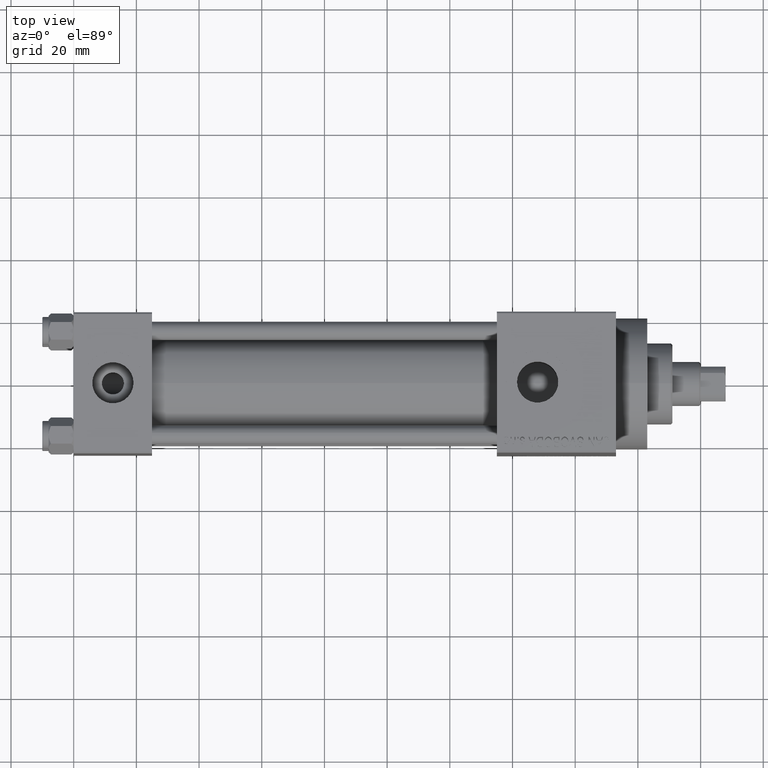
[diagram: clean part render]
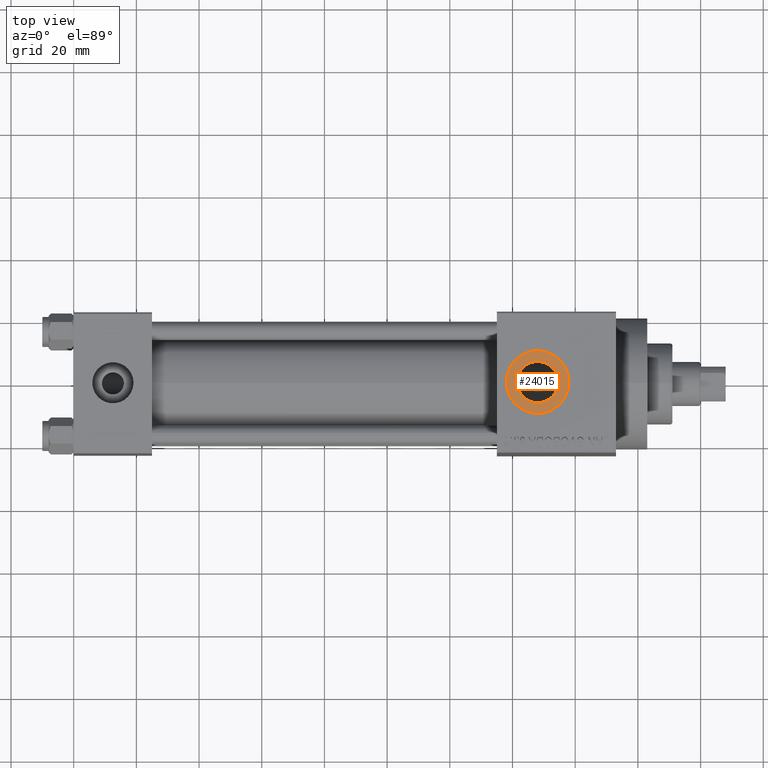
[diagram: same view with one face highlighted and labeled with its STEP entity id]
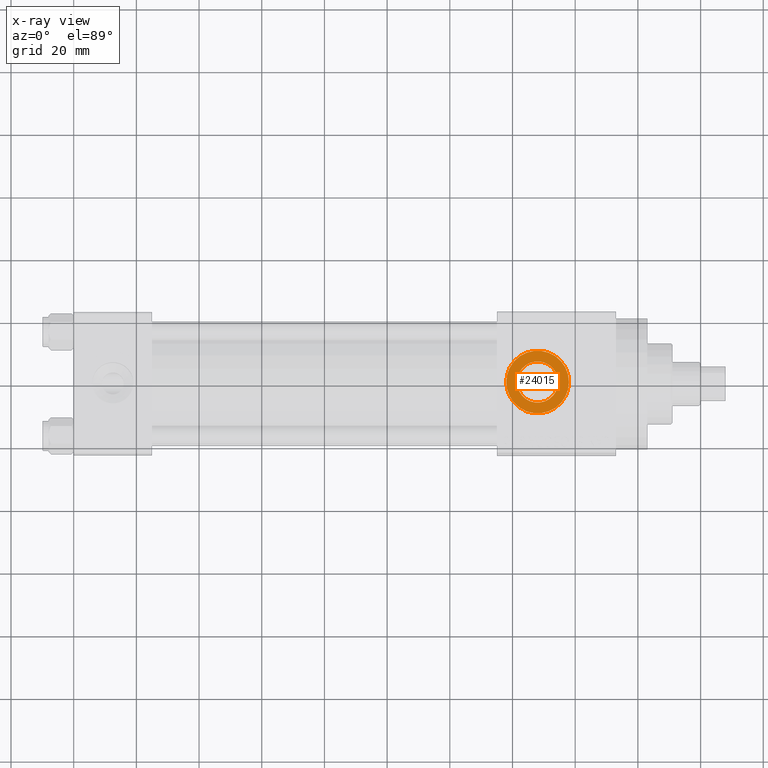
[diagram: x-ray of the same camera — body ghosted, the highlighted face saturated]
A machine part, top view. The second image highlights one B-rep face of the part: STEP entity #24015.
The next image is the same camera in x-ray: the body ghosted, the highlighted face saturated — about 0% of this face is hidden behind the body in this view.
In plain terms, the highlighted planar face has unit normal (0, 0, 1).
Its self-contained STEP definition (entity closure, byte-faithful):
#933 = ORIENTED_EDGE ( 'NONE', *, *, #31708, .T. ) ;
#1072 = AXIS2_PLACEMENT_3D ( 'NONE', #24701, #46964, #39277 ) ;
#1627 = VERTEX_POINT ( 'NONE', #9961 ) ;
#2386 = EDGE_LOOP ( 'NONE', ( #31244, #16583 ) ) ;
#5934 = DIRECTION ( 'NONE',  ( -0.000000000000000000, -0.000000000000000000, -1.000000000000000000 ) ) ;
#9961 = CARTESIAN_POINT ( 'NONE',  ( 138.0000000000000000, 1.224646799147354440E-15, 34.80000000000000426 ) ) ;
#10739 = DIRECTION ( 'NONE',  ( 0.000000000000000000, 0.000000000000000000, 1.000000000000000000 ) ) ;
#10837 = AXIS2_PLACEMENT_3D ( 'NONE', #38924, #5934, #28170 ) ;
#12129 = CARTESIAN_POINT ( 'NONE',  ( 154.5800000000000125, 8.058175938389620001E-16, 34.80000000000000426 ) ) ;
#13240 = EDGE_CURVE ( 'NONE', #23543, #42814, #21713, .T. ) ;
#14105 = CARTESIAN_POINT ( 'NONE',  ( 148.0000000000000284, 0.000000000000000000, 34.80000000000000426 ) ) ;
#14278 = AXIS2_PLACEMENT_3D ( 'NONE', #32718, #47342, #38938 ) ;
#16583 = ORIENTED_EDGE ( 'NONE', *, *, #21988, .T. ) ;
#16745 = CARTESIAN_POINT ( 'NONE',  ( 148.0000000000000284, 0.000000000000000000, 34.80000000000000426 ) ) ;
#18109 = FACE_BOUND ( 'NONE', #2386, .T. ) ;
#19400 = EDGE_CURVE ( 'NONE', #20984, #1627, #37616, .T. ) ;
#20984 = VERTEX_POINT ( 'NONE', #36491 ) ;
#21713 = CIRCLE ( 'NONE', #1072, 6.580000000000002736 ) ;
#21988 = EDGE_CURVE ( 'NONE', #42814, #23543, #27663, .T. ) ;
#23514 = CARTESIAN_POINT ( 'NONE',  ( 141.4200000000000159, 0.000000000000000000, 34.80000000000000426 ) ) ;
#23543 = VERTEX_POINT ( 'NONE', #23514 ) ;
#24015 = ADVANCED_FACE ( 'NONE', ( #18109, #39647 ), #28650, .T. ) ;
#24701 = CARTESIAN_POINT ( 'NONE',  ( 148.0000000000000284, 0.000000000000000000, 34.80000000000000426 ) ) ;
#26153 = ORIENTED_EDGE ( 'NONE', *, *, #19400, .T. ) ;
#27663 = CIRCLE ( 'NONE', #10837, 6.580000000000002736 ) ;
#28170 = DIRECTION ( 'NONE',  ( 1.000000000000000000, 0.000000000000000000, 0.000000000000000000 ) ) ;
#28462 = DIRECTION ( 'NONE',  ( 1.000000000000000000, 0.000000000000000000, 0.000000000000000000 ) ) ;
#28650 = PLANE ( 'NONE',  #14278 ) ;
#29959 = AXIS2_PLACEMENT_3D ( 'NONE', #16745, #35175, #38758 ) ;
#31244 = ORIENTED_EDGE ( 'NONE', *, *, #13240, .T. ) ;
#31708 = EDGE_CURVE ( 'NONE', #1627, #20984, #43802, .T. ) ;
#32718 = CARTESIAN_POINT ( 'NONE',  ( 148.0000000000000284, 0.000000000000000000, 34.80000000000000426 ) ) ;
#35175 = DIRECTION ( 'NONE',  ( 0.000000000000000000, 0.000000000000000000, 1.000000000000000000 ) ) ;
#36491 = CARTESIAN_POINT ( 'NONE',  ( 158.0000000000000284, 0.000000000000000000, 34.80000000000000426 ) ) ;
#37616 = CIRCLE ( 'NONE', #29959, 10.00000000000000888 ) ;
#38758 = DIRECTION ( 'NONE',  ( 1.000000000000000000, 0.000000000000000000, 0.000000000000000000 ) ) ;
#38924 = CARTESIAN_POINT ( 'NONE',  ( 148.0000000000000284, 0.000000000000000000, 34.80000000000000426 ) ) ;
#38938 = DIRECTION ( 'NONE',  ( 1.000000000000000000, 0.000000000000000000, -0.000000000000000000 ) ) ;
#39277 = DIRECTION ( 'NONE',  ( 1.000000000000000000, 0.000000000000000000, 0.000000000000000000 ) ) ;
#39647 = FACE_OUTER_BOUND ( 'NONE', #41224, .T. ) ;
#41224 = EDGE_LOOP ( 'NONE', ( #26153, #933 ) ) ;
#42814 = VERTEX_POINT ( 'NONE', #12129 ) ;
#43017 = AXIS2_PLACEMENT_3D ( 'NONE', #14105, #10739, #28462 ) ;
#43802 = CIRCLE ( 'NONE', #43017, 10.00000000000000888 ) ;
#46964 = DIRECTION ( 'NONE',  ( -0.000000000000000000, -0.000000000000000000, -1.000000000000000000 ) ) ;
#47342 = DIRECTION ( 'NONE',  ( 0.000000000000000000, 0.000000000000000000, 1.000000000000000000 ) ) ;